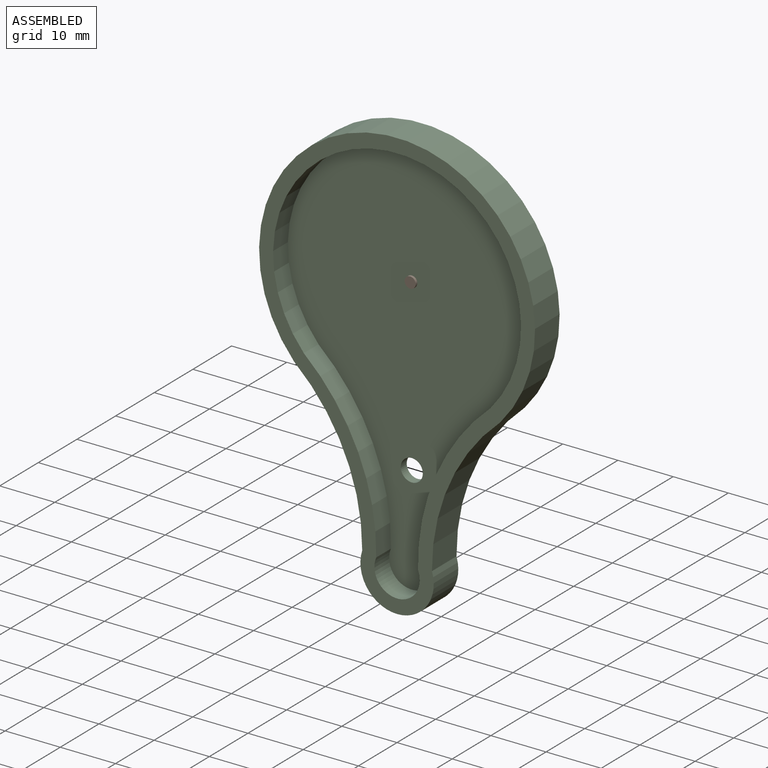
[diagram: assembled view]
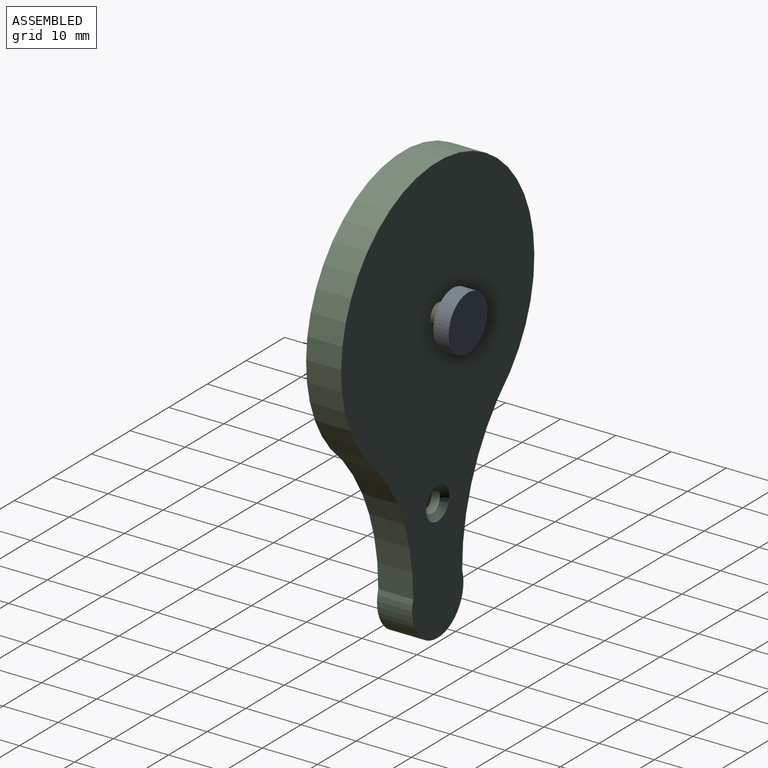
[diagram: assembled view, second angle]
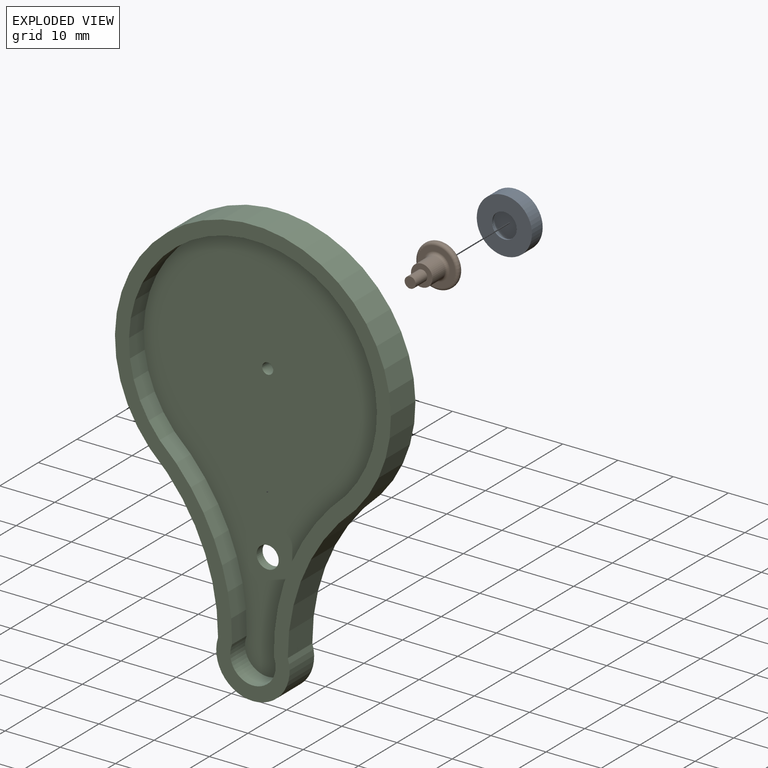
[diagram: exploded view]
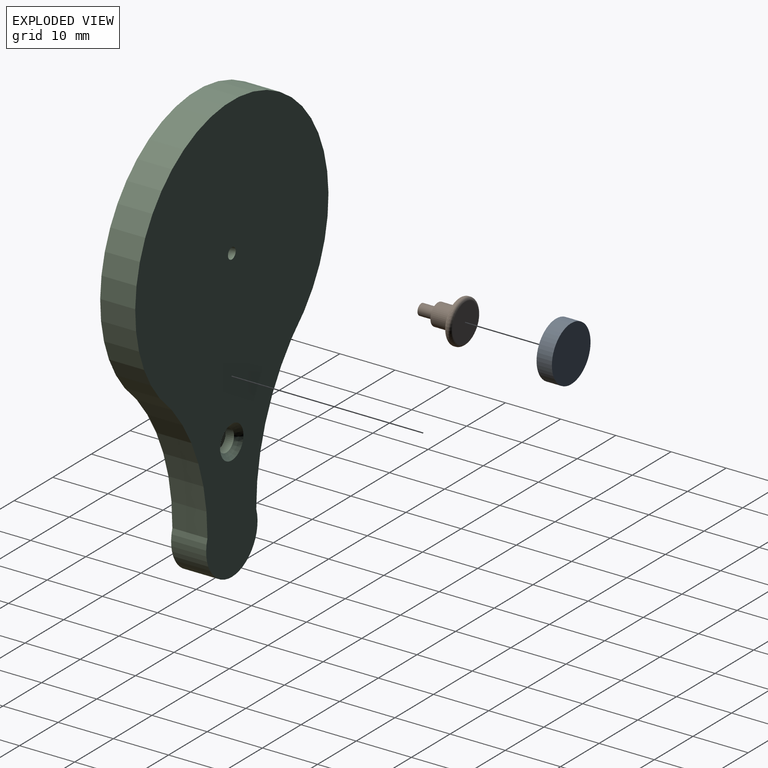
[diagram: exploded view, second angle]
ASSEMBLY  parts=3 mates=2
PART A: 10 faces, bbox 10x10x2.9 mm
  f0: plane 10x10mm, normal (0,0,1), area 78.5mm2, adj f1
  f1: cylinder r=5mm len=10mm, axis (0,0,1), area 87.3mm2, adj f0,f2
  f2: plane 10x10mm, normal (0,0,-1), area 62.7mm2, adj f1,f3
  f3: cylinder r=2.24mm len=4.49mm, axis (0,0,1), area 2.8mm2, adj f2,f4
  f4: torus R=2.74mm, axis (0,0,1), area 12mm2, adj f3,f5
  f5: plane 7.19x7.19mm, normal (0,0,1), area 17mm2, adj f4,f6
  f6: torus R=3.59mm, axis (0,0,1), area 19.3mm2, adj f5,f7
  f7: cylinder r=4.09mm len=8.19mm, axis (0,0,1), area 16.1mm2, adj f6,f8
  f8: torus R=3.59mm, axis (0,0,1), area 19.3mm2, adj f7,f9
  f9: plane 7.19x7.19mm, normal (0,0,-1), area 40.6mm2, adj f8
PART B: 10 faces, bbox 8.4x8.4x8 mm
  f0: torus R=2.44mm, axis (0,0,1), area 10.5mm2, adj f1,f7
  f1: cylinder r=1.94mm len=3.89mm, axis (0,0,1), area 40.4mm2, adj f0,f2
  f2: plane 3.89x3.89mm, normal (0,0,-1), area 8.7mm2, adj f1,f8
  f3: plane 6.78x6.78mm, normal (0,0,1), area 36.1mm2, adj f4
  f4: torus R=3.39mm, axis (0,0,1), area 18.3mm2, adj f3,f5
  f5: cylinder r=3.89mm len=7.78mm, axis (0,0,1), area 4.7mm2, adj f4,f6
  f6: torus R=3.39mm, axis (0,0,1), area 18.3mm2, adj f5,f7
  f7: plane 6.78x6.78mm, normal (0,0,-1), area 17.3mm2, adj f0,f6
  f8: cylinder r=1mm len=3mm, axis (0,0,1), area 18.8mm2, adj f2,f9
  f9: plane 2x2mm, normal (0,0,-1), area 3.1mm2, adj f8
PART C: 14 faces, bbox 50x6.4x78 mm
  f0: plane 77.99x50mm, normal (0,-1,0), area 494mm2, adj f1,f2,f3,f4,f6,f7,f8,f9
  f1: cylinder r=25mm len=50mm, axis (0,1,0), area 729.1mm2, adj f0,f2,f4,f5
  f2: cylinder r=36.5mm len=27.69mm, axis (0,1,0), area 198.6mm2, adj f0,f1,f3,f5
  f3: cylinder r=6.65mm len=13.29mm, axis (0,1,0), area 159.3mm2, adj f0,f2,f4,f5
  f4: cylinder r=36.5mm len=27.69mm, axis (0,1,0), area 198.6mm2, adj f0,f1,f3,f5
  f5: plane 77.99x50mm, normal (0,1,0), area 2368.5mm2, adj f1,f2,f3,f4,f11,f13
  f6: cylinder r=22.46mm len=44.92mm, axis (0,1,0), area 391.8mm2, adj f0,f7,f9,f10
  f7: cylinder r=39.04mm len=29.96mm, axis (0,1,0), area 128.6mm2, adj f0,f6,f8,f10
  f8: cylinder r=4.11mm len=8.21mm, axis (0,1,0), area 61.7mm2, adj f0,f7,f9,f10
  f9: cylinder r=39.04mm len=29.96mm, axis (0,1,0), area 128.6mm2, adj f0,f6,f8,f10
  f10: plane 72.91x44.92mm, normal (0,-1,0), area 1890.2mm2, adj f6,f7,f8,f9,f11,f12
  f11: cylinder r=1mm len=2.54mm, axis (0,1,0), area 16mm2, adj f5,f10
  f12: cylinder r=2mm len=4mm, axis (0,1,0), area 19.4mm2, adj f10,f13
  f13: cone r=2mm half-angle=45deg, axis (0,1,0), area 22.2mm2, adj f5,f12
PLACE A rot(axis=(-1,0,0),90deg) t=(14.89,33.57,20.12)mm
PLACE B rot(axis=(-1,0,0),90deg) t=(14.89,33.81,20.12)mm
PLACE C t=(15.85,30.86,20.12)mm
MATE revolute B.f8 <-> A.f1  axis (0,1,0) through (15.85,35.89,20.12)mm
MATE slider B.f8 <-> C.f1  axis (0,-1,0) through (15.85,30.89,20.12)mm
